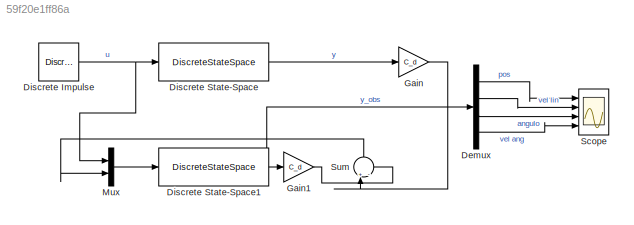
MODEL slx_59f20e1ff86a
KIND model
CONFIG AbsTol = auto
CONFIG EnableMultiTasking = off
CONFIG FixedStep = auto
CONFIG MaxStep = auto
CONFIG MinStep = auto
CONFIG RelTol = 1e-3
CONFIG SampleTimeConstraint = Unconstrained
CONFIG SolverName = VariableStepAuto
CONFIG StartTime = 0.0
CONFIG StopTime = 5
BLOCK [Demux] Demux
  Ports = [1, 4]
BLOCK [Reference] Discrete Impulse  REF=dspsrcs4/Discrete 
Impulse
  Ports = [0, 1]
  SourceBlock = dspsrcs4/Discrete \nImpulse
  SourceProductBaseCode = DS
  SourceType = Discrete Impulse
BLOCK [DiscreteStateSpace] Discrete State-Space
  A = A_d
  B = B_d
  C = C
  D = [0;0]
  SampleTime = 0.02
BLOCK [DiscreteStateSpace] Discrete State-Space1
  A = A_obs
  B = B_obs
  C = C_d2
  D = zeros(4,3)
  SampleTime = 0.02
BLOCK [Gain] Gain
  Gain = C_d
  Multiplication = Matrix(K*u)
BLOCK [Gain] Gain1
  Gain = C_d
  Multiplication = Matrix(K*u)
BLOCK [Mux] Mux
  DisplayOption = bar
  Inputs = 2
  Ports = [2, 1]
BLOCK [Scope] Scope
  Floating = off
  NumInputPorts = 4
  Ports = [4]
  ScopeSpecificationString = Simulink.scopes.TimeScopeBlockCfg('CurrentConfiguration', extmgr.ConfigurationSet(extmgr.Configuration('Core','General UI',true),extmgr.Configuration('Core','Source UI',true),extmgr.Configuration('Sources','WiredSimulink',true),extmgr.Configuration('Visuals','Time Domain',true,'SerializedDisplays',{struct('MinYLimReal','-3.42632','MaxYLimReal','30.83686','YLabelReal','','MinYLimMag','0.00000','Max...<+3415ch>
BLOCK [Sum] Sum
  Inputs = +|-
  NameLocation = right
  Ports = [2, 1]
LINE Demux:1 -> Scope:1
LINE Demux:2 -> Scope:2
LINE Demux:3 -> Scope:3
LINE Demux:4 -> Scope:4
NET Discrete Impulse:1 -> Discrete State-Space:1, Mux:1
NET Discrete State-Space1:1 -> Demux:1, Gain1:1
LINE Discrete State-Space:1 -> Gain:1
LINE Gain1:1 -> Sum:2
LINE Gain:1 -> Sum:1
LINE Mux:1 -> Discrete State-Space1:1
LINE Sum:1 -> Mux:2
note: NET lines group one-source signal fan-out (src -> all destinations, sorted); 1:1 wires keep LINE
